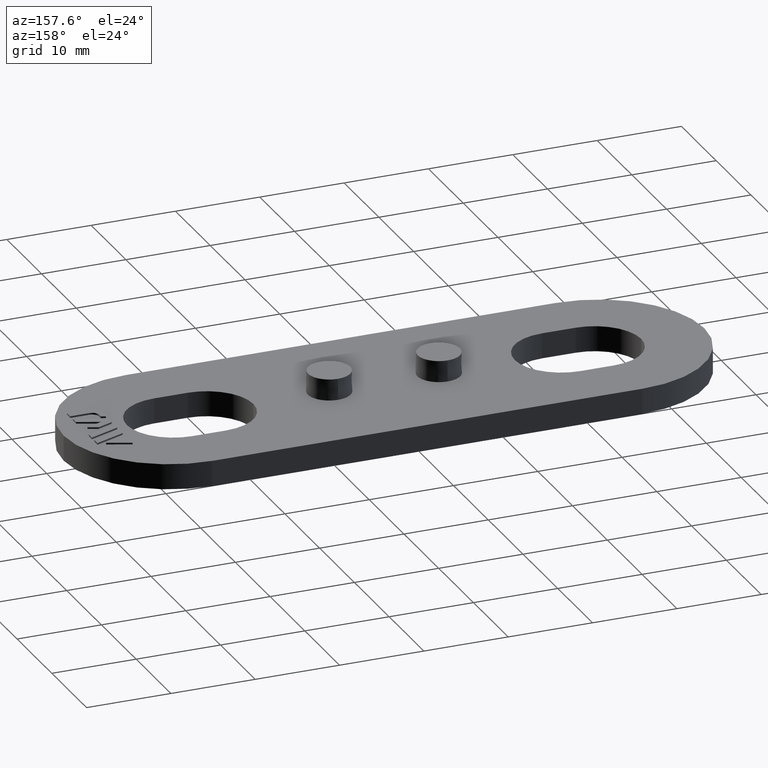
[diagram: clean part render]
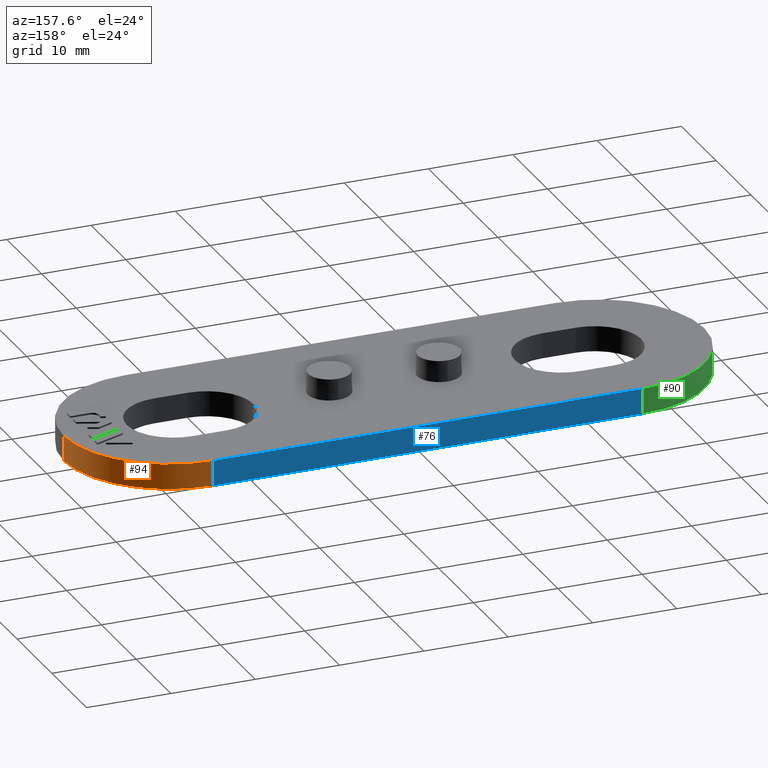
[diagram: same view with three faces highlighted in distinct colors, each labeled with its STEP entity id]
A machine part, auxiliary view with three faces highlighted in distinct colors.
Their STEP definitions:

[orange] entity #94 — the highlighted cylindrical surface (partial cylindrical patch) has radius 12.5 mm, axis along (0, -0, -1).
#94 = ADVANCED_FACE( '', ( #198 ), #199, .T. );
#198 = FACE_OUTER_BOUND( '', #355, .T. );
#199 = CYLINDRICAL_SURFACE( '', #356, 12.5000000000000 );
#355 = EDGE_LOOP( '', ( #668, #669, #670, #671 ) );
#356 = AXIS2_PLACEMENT_3D( '', #672, #673, #674 );
#668 = ORIENTED_EDGE( '', *, *, #1052, .T. );
#669 = ORIENTED_EDGE( '', *, *, #1135, .F. );
#670 = ORIENTED_EDGE( '', *, *, #1106, .F. );
#671 = ORIENTED_EDGE( '', *, *, #1078, .T. );
#672 = CARTESIAN_POINT( '', ( 25.5000000000000, -8.67361737988404E-015, 5.31088347701510E-031 ) );
#673 = DIRECTION( '', ( 0.000000000000000, -6.12303176911189E-017, -1.00000000000000 ) );
#674 = DIRECTION( '', ( 0.000000000000000, -1.00000000000000, 6.12303176911189E-017 ) );
#1052 = EDGE_CURVE( '', #1243, #1251, #1253, .T. );
#1078 = EDGE_CURVE( '', #1304, #1243, #1305, .T. );
#1106 = EDGE_CURVE( '', #1304, #1355, #1356, .T. );
#1135 = EDGE_CURVE( '', #1355, #1251, #1399, .T. );
#1243 = VERTEX_POINT( '', #1554 );
#1251 = VERTEX_POINT( '', #1564 );
#1253 = CIRCLE( '', #1566, 12.5000000000000 );
#1304 = VERTEX_POINT( '', #1634 );
#1305 = LINE( '', #1635, #1636 );
#1355 = VERTEX_POINT( '', #1705 );
#1356 = CIRCLE( '', #1706, 12.5000000000000 );
#1399 = LINE( '', #1772, #1773 );
#1554 = CARTESIAN_POINT( '', ( 25.5000000000000, 12.5000000000000, 3.00000000000000 ) );
#1564 = CARTESIAN_POINT( '', ( 38.0000000000000, -8.48992642681068E-015, 3.00000000000000 ) );
#1566 = AXIS2_PLACEMENT_3D( '', #1986, #1987, #1988 );
#1634 = CARTESIAN_POINT( '', ( 25.5000000000000, 12.5000000000000, -7.65378971138985E-016 ) );
#1635 = CARTESIAN_POINT( '', ( 25.5000000000000, 12.5000000000000, -7.65378971138985E-016 ) );
#1636 = VECTOR( '', #2030, 1000.00000000000 );
#1705 = CARTESIAN_POINT( '', ( 38.0000000000000, -8.67361737988404E-015, 5.31088347701510E-031 ) );
#1706 = AXIS2_PLACEMENT_3D( '', #2074, #2075, #2076 );
#1772 = CARTESIAN_POINT( '', ( 38.0000000000000, -8.67361737988404E-015, 5.31088347701510E-031 ) );
#1773 = VECTOR( '', #2115, 1000.00000000000 );
#1986 = CARTESIAN_POINT( '', ( 25.5000000000000, -8.48992642681068E-015, 3.00000000000000 ) );
#1987 = DIRECTION( '', ( 0.000000000000000, -6.12303176911189E-017, -1.00000000000000 ) );
#1988 = DIRECTION( '', ( 0.000000000000000, 1.00000000000000, -6.12303176911189E-017 ) );
#2030 = DIRECTION( '', ( 0.000000000000000, 6.12303176911189E-017, 1.00000000000000 ) );
#2074 = CARTESIAN_POINT( '', ( 25.5000000000000, -8.67361737988404E-015, 5.31088347701510E-031 ) );
#2075 = DIRECTION( '', ( 0.000000000000000, -6.12303176911189E-017, -1.00000000000000 ) );
#2076 = DIRECTION( '', ( 0.000000000000000, 1.00000000000000, -6.12303176911189E-017 ) );
#2115 = DIRECTION( '', ( 0.000000000000000, 6.12303176911189E-017, 1.00000000000000 ) );

[blue] entity #76 — the highlighted planar face has unit normal (0, -1, 0).
#76 = ADVANCED_FACE( '', ( #158 ), #159, .F. );
#158 = FACE_OUTER_BOUND( '', #315, .T. );
#159 = PLANE( '', #316 );
#315 = EDGE_LOOP( '', ( #512, #513, #514, #515 ) );
#316 = AXIS2_PLACEMENT_3D( '', #516, #517, #518 );
#512 = ORIENTED_EDGE( '', *, *, #1047, .T. );
#513 = ORIENTED_EDGE( '', *, *, #1078, .F. );
#514 = ORIENTED_EDGE( '', *, *, #1079, .F. );
#515 = ORIENTED_EDGE( '', *, *, #1080, .T. );
#516 = CARTESIAN_POINT( '', ( -25.5000000000000, 12.5000000000000, -7.65378971138985E-016 ) );
#517 = DIRECTION( '', ( 0.000000000000000, -1.00000000000000, 6.12303176911189E-017 ) );
#518 = DIRECTION( '', ( -1.00000000000000, 0.000000000000000, 0.000000000000000 ) );
#1047 = EDGE_CURVE( '', #1242, #1243, #1244, .T. );
#1078 = EDGE_CURVE( '', #1304, #1243, #1305, .T. );
#1079 = EDGE_CURVE( '', #1306, #1304, #1307, .T. );
#1080 = EDGE_CURVE( '', #1306, #1242, #1308, .T. );
#1242 = VERTEX_POINT( '', #1553 );
#1243 = VERTEX_POINT( '', #1554 );
#1244 = LINE( '', #1555, #1556 );
#1304 = VERTEX_POINT( '', #1634 );
#1305 = LINE( '', #1635, #1636 );
#1306 = VERTEX_POINT( '', #1637 );
#1307 = LINE( '', #1638, #1639 );
#1308 = LINE( '', #1640, #1641 );
#1553 = CARTESIAN_POINT( '', ( -25.5000000000000, 12.5000000000000, 3.00000000000000 ) );
#1554 = CARTESIAN_POINT( '', ( 25.5000000000000, 12.5000000000000, 3.00000000000000 ) );
#1555 = CARTESIAN_POINT( '', ( -25.5000000000000, 12.5000000000000, 3.00000000000000 ) );
#1556 = VECTOR( '', #1975, 1000.00000000000 );
#1634 = CARTESIAN_POINT( '', ( 25.5000000000000, 12.5000000000000, -7.65378971138985E-016 ) );
#1635 = CARTESIAN_POINT( '', ( 25.5000000000000, 12.5000000000000, -7.65378971138985E-016 ) );
#1636 = VECTOR( '', #2030, 1000.00000000000 );
#1637 = CARTESIAN_POINT( '', ( -25.5000000000000, 12.5000000000000, -7.65378971138985E-016 ) );
#1638 = CARTESIAN_POINT( '', ( -25.5000000000000, 12.5000000000000, -7.65378971138985E-016 ) );
#1639 = VECTOR( '', #2031, 1000.00000000000 );
#1640 = CARTESIAN_POINT( '', ( -25.5000000000000, 12.5000000000000, -7.65378971138985E-016 ) );
#1641 = VECTOR( '', #2032, 1000.00000000000 );
#1975 = DIRECTION( '', ( 1.00000000000000, 0.000000000000000, 0.000000000000000 ) );
#2030 = DIRECTION( '', ( 0.000000000000000, 6.12303176911189E-017, 1.00000000000000 ) );
#2031 = DIRECTION( '', ( 1.00000000000000, 0.000000000000000, 0.000000000000000 ) );
#2032 = DIRECTION( '', ( 0.000000000000000, 6.12303176911189E-017, 1.00000000000000 ) );

[green] entity #90 — the highlighted cylindrical surface (partial cylindrical patch) has radius 12.5 mm, axis along (0, -0, -1).
#90 = ADVANCED_FACE( '', ( #190 ), #191, .T. );
#190 = FACE_OUTER_BOUND( '', #347, .T. );
#191 = CYLINDRICAL_SURFACE( '', #348, 12.5000000000000 );
#347 = EDGE_LOOP( '', ( #640, #641, #642, #643 ) );
#348 = AXIS2_PLACEMENT_3D( '', #644, #645, #646 );
#640 = ORIENTED_EDGE( '', *, *, #1048, .T. );
#641 = ORIENTED_EDGE( '', *, *, #1080, .F. );
#642 = ORIENTED_EDGE( '', *, *, #1110, .F. );
#643 = ORIENTED_EDGE( '', *, *, #1132, .T. );
#644 = CARTESIAN_POINT( '', ( -25.5000000000000, -8.67361737988404E-015, 5.31088347701510E-031 ) );
#645 = DIRECTION( '', ( 0.000000000000000, -6.12303176911189E-017, -1.00000000000000 ) );
#646 = DIRECTION( '', ( 0.000000000000000, -1.00000000000000, 6.12303176911189E-017 ) );
#1048 = EDGE_CURVE( '', #1245, #1242, #1246, .T. );
#1080 = EDGE_CURVE( '', #1306, #1242, #1308, .T. );
#1110 = EDGE_CURVE( '', #1361, #1306, #1363, .T. );
#1132 = EDGE_CURVE( '', #1361, #1245, #1396, .T. );
#1242 = VERTEX_POINT( '', #1553 );
#1245 = VERTEX_POINT( '', #1557 );
#1246 = CIRCLE( '', #1558, 12.5000000000000 );
#1306 = VERTEX_POINT( '', #1637 );
#1308 = LINE( '', #1640, #1641 );
#1361 = VERTEX_POINT( '', #1712 );
#1363 = CIRCLE( '', #1714, 12.5000000000000 );
#1396 = LINE( '', #1766, #1767 );
#1553 = CARTESIAN_POINT( '', ( -25.5000000000000, 12.5000000000000, 3.00000000000000 ) );
#1557 = CARTESIAN_POINT( '', ( -38.0000000000000, -1.02246499027875E-014, 3.00000000000000 ) );
#1558 = AXIS2_PLACEMENT_3D( '', #1976, #1977, #1978 );
#1637 = CARTESIAN_POINT( '', ( -25.5000000000000, 12.5000000000000, -7.65378971138985E-016 ) );
#1640 = CARTESIAN_POINT( '', ( -25.5000000000000, 12.5000000000000, -7.65378971138985E-016 ) );
#1641 = VECTOR( '', #2032, 1000.00000000000 );
#1712 = CARTESIAN_POINT( '', ( -38.0000000000000, -1.04083408558608E-014, 6.37306017241811E-031 ) );
#1714 = AXIS2_PLACEMENT_3D( '', #2084, #2085, #2086 );
#1766 = CARTESIAN_POINT( '', ( -38.0000000000000, -1.04083408558608E-014, 6.37306017241811E-031 ) );
#1767 = VECTOR( '', #2112, 1000.00000000000 );
#1976 = CARTESIAN_POINT( '', ( -25.5000000000000, -8.48992642681068E-015, 3.00000000000000 ) );
#1977 = DIRECTION( '', ( 0.000000000000000, -6.12303176911189E-017, -1.00000000000000 ) );
#1978 = DIRECTION( '', ( 0.000000000000000, 1.00000000000000, -6.12303176911189E-017 ) );
#2032 = DIRECTION( '', ( 0.000000000000000, 6.12303176911189E-017, 1.00000000000000 ) );
#2084 = CARTESIAN_POINT( '', ( -25.5000000000000, -8.67361737988404E-015, 5.31088347701510E-031 ) );
#2085 = DIRECTION( '', ( 0.000000000000000, -6.12303176911189E-017, -1.00000000000000 ) );
#2086 = DIRECTION( '', ( 0.000000000000000, 1.00000000000000, -6.12303176911189E-017 ) );
#2112 = DIRECTION( '', ( 0.000000000000000, 6.12303176911189E-017, 1.00000000000000 ) );